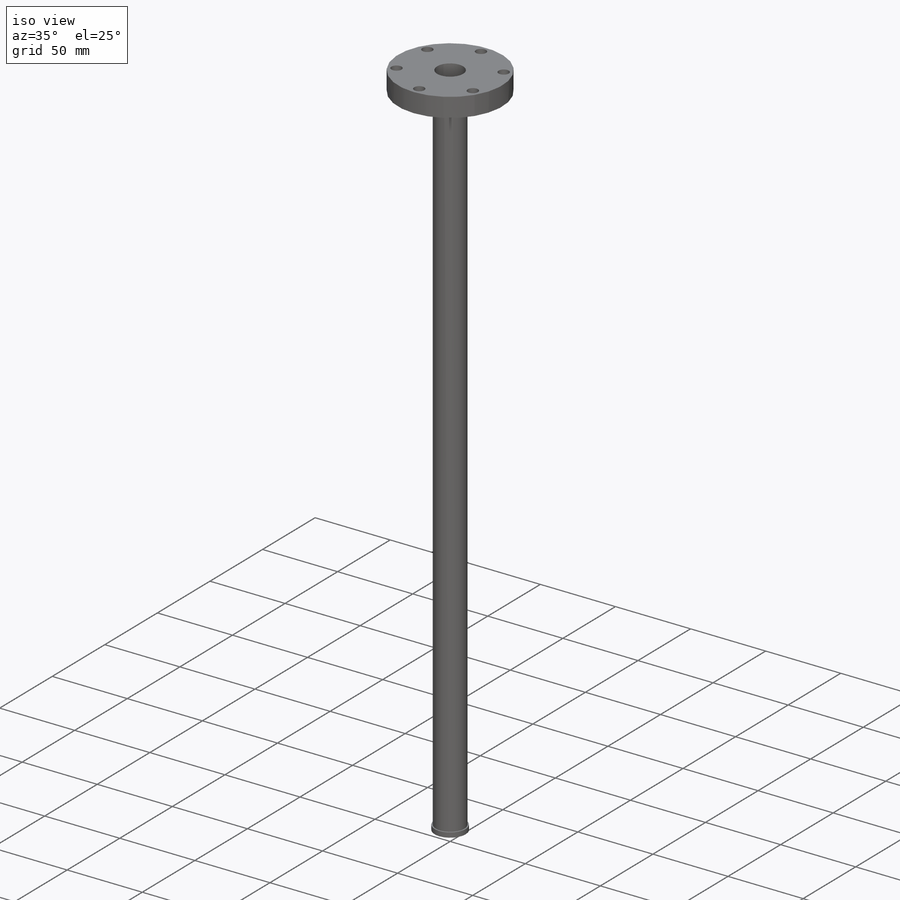
[diagram: iso view]
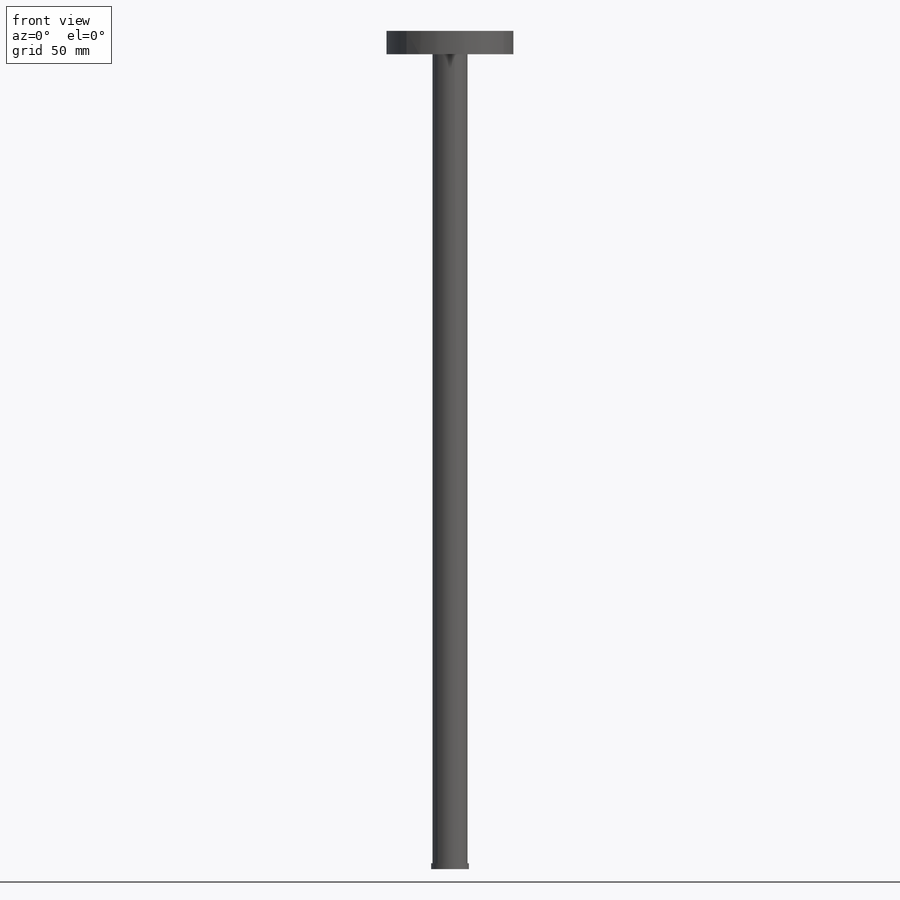
[diagram: front view]
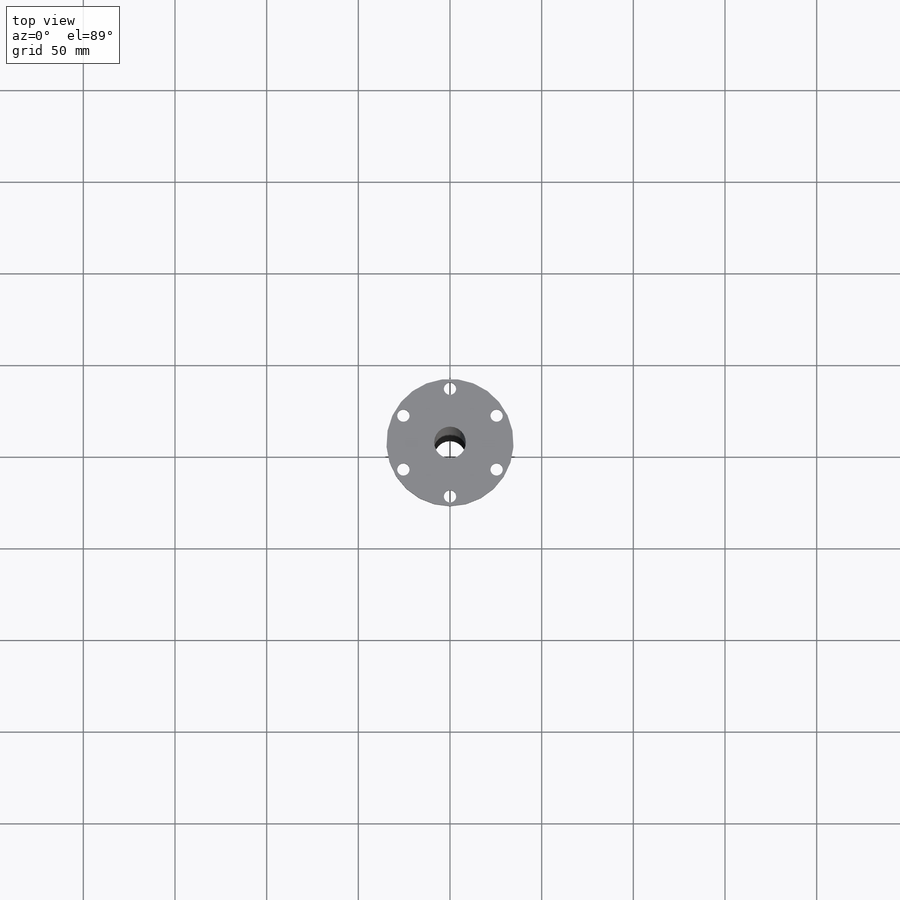
[diagram: top view]
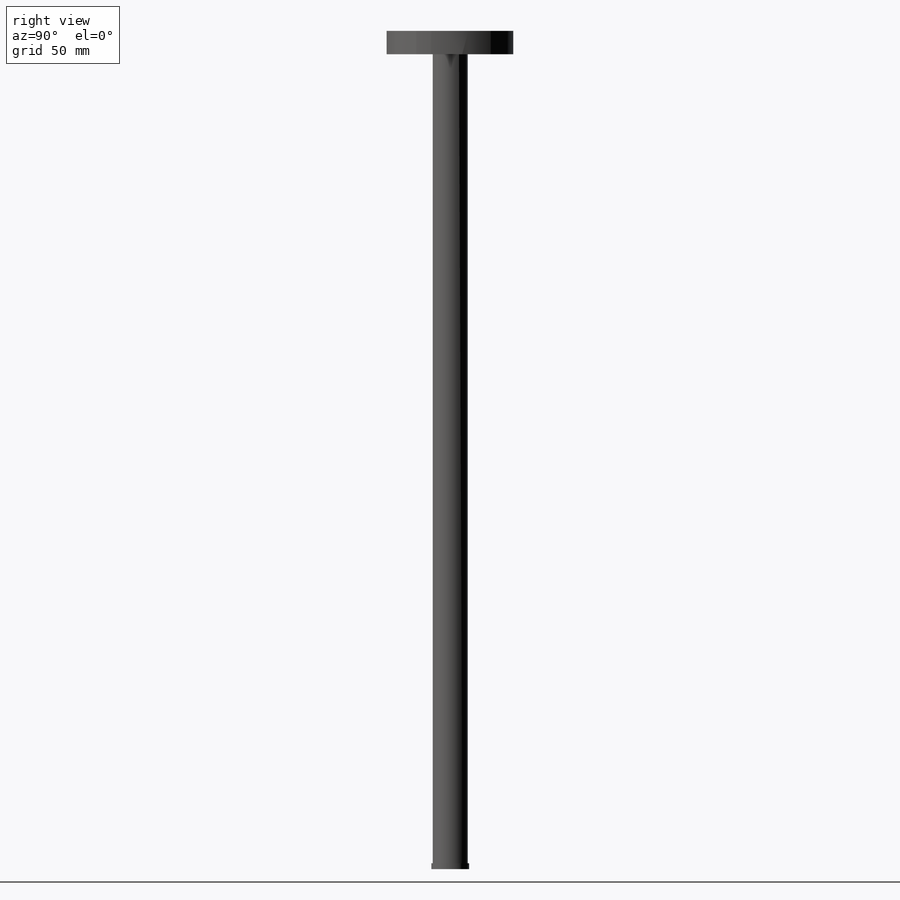
[diagram: right view]
SOLIDWORKS PART (.sldprt)
format: sldprt  version: not decoded by parser v0  size: 150,528 bytes
history: native  units: mm
features: sketch x4, extrude x3, material x1, cut_extrude x1, pattern_circular x1 (+11 scaffold rows collapsed)
feature tree (21):
  scaffold x11  (default folders/planes/origin — collapsed)
  material  "Material <not specified>"
  sketch  "Sketch1"  dims[D1=19.05mm D2=17.272mm]
  extrude  "Extrude1"  Depth=457.2mm
  sketch  "Sketch2"  dims[D1=69.342mm]
  extrude  "Extrude2"  Depth=12.7mm
  sketch  "Sketch3"  dims[D1=6.731mm D2=29.3624mm]
  cut_extrude  "Extrude3"  [1 undecoded]
  pattern_circular  "CirPattern1"  Count=6 Angle=360deg
  sketch  "Sketch4"  dims[D1=20.6375mm]
  extrude  "Extrude4"  Depth=3.175mm
decode coverage: 8 of 9 modeling features carry decoded parameters
note: 1 parameter value undecoded
note: suppression state not decoded; provenance and decode notes live in map.json
